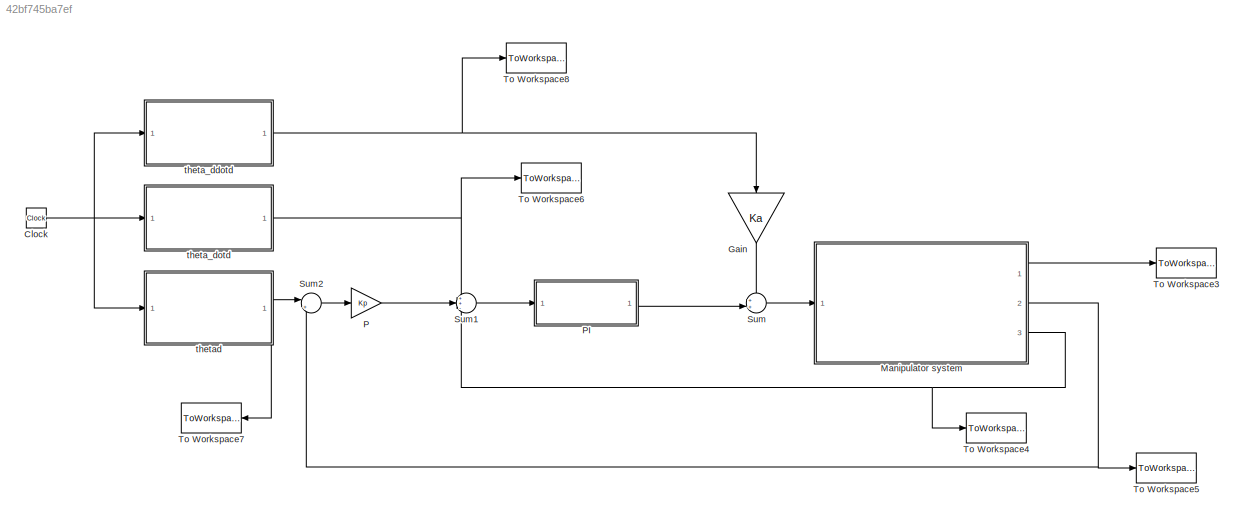
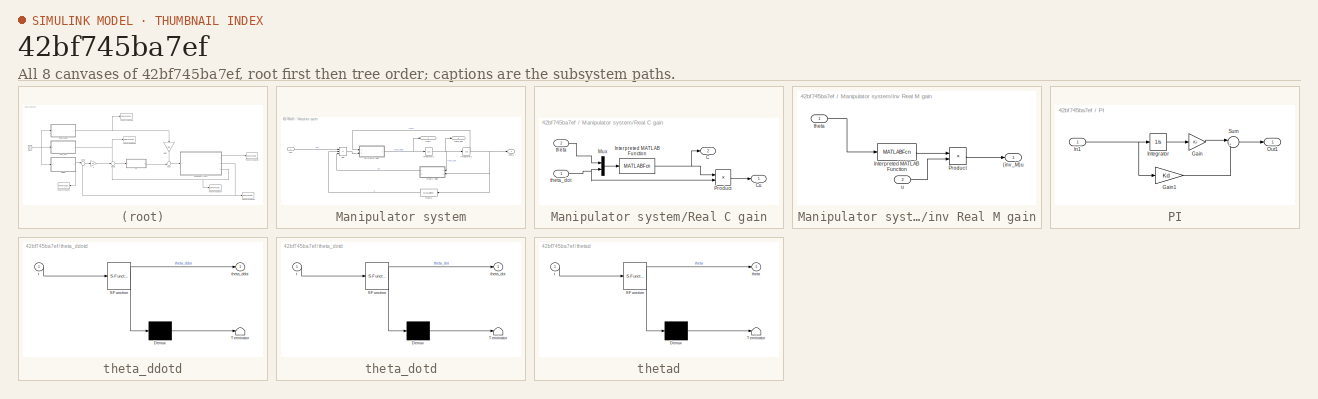
[diagram: thumbnail index - all 8 canvases of the model, root first then tree order]
MODEL slx_42bf745ba7ef
KIND model
CONFIG AbsTol = auto
CONFIG EnableMultiTasking = off
CONFIG FixedStep = 0.01
CONFIG MaxStep = auto
CONFIG MinStep = auto
CONFIG RelTol = 1e-3
CONFIG SampleTimeConstraint = Unconstrained
CONFIG SolverName = ode4
CONFIG StartTime = 0.0
CONFIG StopTime = 10.0
BLOCK [Clock] Clock
BLOCK [Gain] Gain
  Gain = Ka
  Multiplication = Matrix(K*u) (u vector)
  NameLocation = left
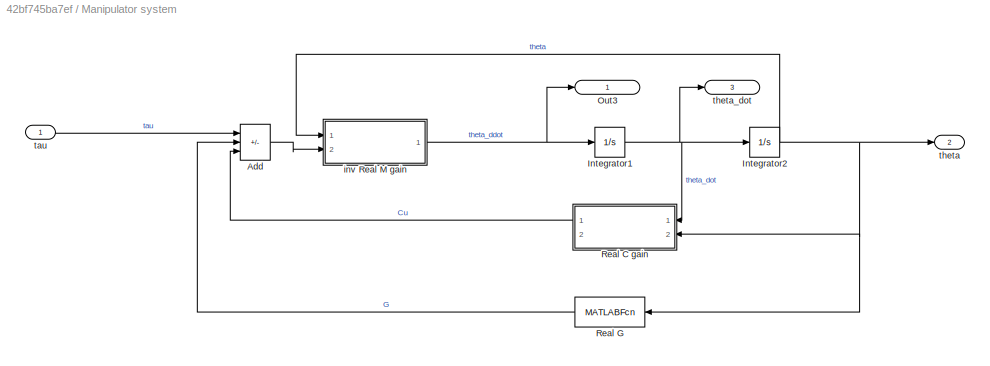
BLOCK [SubSystem] Manipulator system
  Ports = [1, 3]
  RequestExecContextInheritance = off
BLOCK [Sum] Manipulator system/Add
  IconShape = rectangular
  Inputs = +--
  Ports = [3, 1]
BLOCK [Integrator] Manipulator system/Integrator1
  InitialCondition = theta_dot0
  Ports = [1, 1]
BLOCK [Integrator] Manipulator system/Integrator2
  InitialCondition = theta0
  Ports = [1, 1]
BLOCK [Outport] Manipulator system/Out3
  IconDisplay = Signal name
BLOCK [SubSystem] Manipulator system/Real C gain
  Ports = [2, 2]
  RequestExecContextInheritance = off
BLOCK [Outport] Manipulator system/Real C gain/C
  Port = 2
BLOCK [Outport] Manipulator system/Real C gain/Cu
BLOCK [MATLABFcn] Manipulator system/Real C gain/Interpreted MATLAB Function
  MATLABFcn = get_real_C(u(2), u(3), u(4))
  Output1D = off
  Ports = [1, 1]
BLOCK [Mux] Manipulator system/Real C gain/Mux
  DisplayOption = bar
  Inputs = 2
  Ports = [2, 1]
BLOCK [Product] Manipulator system/Real C gain/Product
  Multiplication = Matrix(*)
  Ports = [2, 1]
BLOCK [Inport] Manipulator system/Real C gain/theta
  Port = 2
BLOCK [Inport] Manipulator system/Real C gain/theta_dot
BLOCK [MATLABFcn] Manipulator system/Real G
  MATLABFcn = get_real_G(u(1), u(2))
  Output1D = off
  Ports = [1, 1]
BLOCK [SubSystem] Manipulator system/inv Real M gain
  Ports = [2, 1]
  RequestExecContextInheritance = off
BLOCK [Outport] Manipulator system/inv Real M gain/(inv_M)u
BLOCK [MATLABFcn] Manipulator system/inv Real M gain/Interpreted MATLAB Function
  MATLABFcn = get_inv_real_M(u(2))
  Output1D = off
  Ports = [1, 1]
BLOCK [Product] Manipulator system/inv Real M gain/Product
  Multiplication = Matrix(*)
  Ports = [2, 1]
BLOCK [Inport] Manipulator system/inv Real M gain/theta
BLOCK [Inport] Manipulator system/inv Real M gain/u
  Port = 2
BLOCK [Inport] Manipulator system/tau
  IconDisplay = Signal name
BLOCK [Outport] Manipulator system/theta
  IconDisplay = Signal name
  Port = 2
BLOCK [Outport] Manipulator system/theta_dot
  IconDisplay = Signal name
  Port = 3
BLOCK [Gain] P
  Gain = Kp
  Multiplication = Matrix(K*u) (u vector)
BLOCK [SubSystem] PI
  Ports = [1, 1]
  RequestExecContextInheritance = off
BLOCK [Gain] PI/Gain
  Gain = Ki
  Multiplication = Matrix(K*u) (u vector)
BLOCK [Gain] PI/Gain1
  Gain = Kd
  Multiplication = Matrix(K*u) (u vector)
BLOCK [Inport] PI/In1
BLOCK [Integrator] PI/Integrator
  Ports = [1, 1]
BLOCK [Outport] PI/Out1
BLOCK [Sum] PI/Sum
  Inputs = |++
  Ports = [2, 1]
BLOCK [Sum] Sum
  Inputs = ++|
  Ports = [2, 1]
BLOCK [Sum] Sum1
  Inputs = ++-
  Ports = [3, 1]
BLOCK [Sum] Sum2
  Inputs = |+-
  Ports = [2, 1]
BLOCK [ToWorkspace] To Workspace3
  MaxDataPoints = inf
  Ports = [1]
  SampleTime = -1
  SaveFormat = Timeseries
  VariableName = theta_ddot
BLOCK [ToWorkspace] To Workspace4
  MaxDataPoints = inf
  Ports = [1]
  SampleTime = -1
  SaveFormat = Timeseries
  VariableName = theta_dot
BLOCK [ToWorkspace] To Workspace5
  MaxDataPoints = inf
  Ports = [1]
  SampleTime = -1
  SaveFormat = Timeseries
  VariableName = theta
BLOCK [ToWorkspace] To Workspace6
  MaxDataPoints = inf
  Ports = [1]
  SampleTime = -1
  SaveFormat = Timeseries
  VariableName = theta_dotd
BLOCK [ToWorkspace] To Workspace7
  MaxDataPoints = inf
  Ports = [1]
  SampleTime = -1
  SaveFormat = Timeseries
  VariableName = thetad
BLOCK [ToWorkspace] To Workspace8
  MaxDataPoints = inf
  Ports = [1]
  SampleTime = -1
  SaveFormat = Timeseries
  VariableName = theta_ddotd
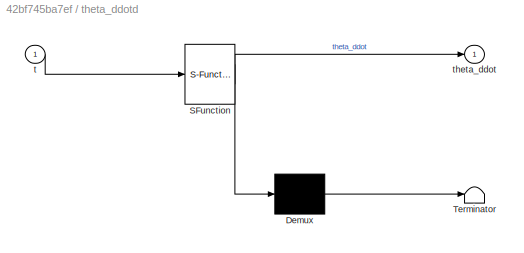
BLOCK [SubSystem] theta_ddotd
  ErrorFcn = Stateflow.Translate.translate
  PermitHierarchicalResolution = ExplicitOnly
  Ports = [1, 1]
  RequestExecContextInheritance = off
  SFBlockType = MATLAB Function
  TreatAsAtomicUnit = on
BLOCK [Demux] theta_ddotd/ Demux 
  Outputs = 1
  Ports = [1, 1]
BLOCK [S-Function] theta_ddotd/ SFunction 
  EnableBusSupport = on
  FunctionName = sf_sfun
  Parameters = omega
  PortCounts = [1 2]
  Ports = [1, 2]
  SFcnIsStateOwnerBlock = off
  SFunctionDeploymentMode = off
  Tag = Stateflow S-Function 3
BLOCK [Terminator] theta_ddotd/ Terminator 
BLOCK [Inport] theta_ddotd/t
BLOCK [Outport] theta_ddotd/theta_ddot
BLOCK [SubSystem] theta_dotd
  ErrorFcn = Stateflow.Translate.translate
  PermitHierarchicalResolution = ExplicitOnly
  Ports = [1, 1]
  RequestExecContextInheritance = off
  SFBlockType = MATLAB Function
  TreatAsAtomicUnit = on
BLOCK [Demux] theta_dotd/ Demux 
  Outputs = 1
  Ports = [1, 1]
BLOCK [S-Function] theta_dotd/ SFunction 
  EnableBusSupport = on
  FunctionName = sf_sfun
  Parameters = omega
  PortCounts = [1 2]
  Ports = [1, 2]
  SFcnIsStateOwnerBlock = off
  SFunctionDeploymentMode = off
  Tag = Stateflow S-Function 1
BLOCK [Terminator] theta_dotd/ Terminator 
BLOCK [Inport] theta_dotd/t
BLOCK [Outport] theta_dotd/theta_dot
BLOCK [SubSystem] thetad
  ErrorFcn = Stateflow.Translate.translate
  PermitHierarchicalResolution = ExplicitOnly
  Ports = [1, 1]
  RequestExecContextInheritance = off
  SFBlockType = MATLAB Function
  TreatAsAtomicUnit = on
BLOCK [Demux] thetad/ Demux 
  Outputs = 1
  Ports = [1, 1]
BLOCK [S-Function] thetad/ SFunction 
  EnableBusSupport = on
  FunctionName = sf_sfun
  Parameters = dc,omega
  PortCounts = [1 2]
  Ports = [1, 2]
  SFcnIsStateOwnerBlock = off
  SFunctionDeploymentMode = off
  Tag = Stateflow S-Function 2
BLOCK [Terminator] thetad/ Terminator 
BLOCK [Inport] thetad/t
BLOCK [Outport] thetad/theta
NET Clock:1 -> theta_ddotd:1, theta_dotd:1, thetad:1
LINE Gain:1 -> Sum:1
LINE Manipulator system/Add:1 -> Manipulator system/inv Real M gain:2
NET Manipulator system/Integrator1:1 -> Manipulator system/Integrator2:1, Manipulator system/Real C gain:1, Manipulator system/theta_dot:1
NET Manipulator system/Integrator2:1 -> Manipulator system/Real C gain:2, Manipulator system/Real G:1, Manipulator system/inv Real M gain:1, Manipulator system/theta:1
NET Manipulator system/Real C gain/Interpreted MATLAB Function:1 -> Manipulator system/Real C gain/C:1, Manipulator system/Real C gain/Product:1
LINE Manipulator system/Real C gain/Mux:1 -> Manipulator system/Real C gain/Interpreted MATLAB Function:1
LINE Manipulator system/Real C gain/Product:1 -> Manipulator system/Real C gain/Cu:1
LINE Manipulator system/Real C gain/theta:1 -> Manipulator system/Real C gain/Mux:1
NET Manipulator system/Real C gain/theta_dot:1 -> Manipulator system/Real C gain/Mux:2, Manipulator system/Real C gain/Product:2
LINE Manipulator system/Real C gain:1 -> Manipulator system/Add:3
LINE Manipulator system/Real G:1 -> Manipulator system/Add:2
LINE Manipulator system/inv Real M gain/Interpreted MATLAB Function:1 -> Manipulator system/inv Real M gain/Product:1
LINE Manipulator system/inv Real M gain/Product:1 -> Manipulator system/inv Real M gain/(inv_M)u:1
LINE Manipulator system/inv Real M gain/theta:1 -> Manipulator system/inv Real M gain/Interpreted MATLAB Function:1
LINE Manipulator system/inv Real M gain/u:1 -> Manipulator system/inv Real M gain/Product:2
NET Manipulator system/inv Real M gain:1 -> Manipulator system/Integrator1:1, Manipulator system/Out3:1
LINE Manipulator system/tau:1 -> Manipulator system/Add:1
LINE Manipulator system:1 -> To Workspace3:1
NET Manipulator system:2 -> Sum2:2, To Workspace5:1
NET Manipulator system:3 -> Sum1:3, To Workspace4:1
LINE P:1 -> Sum1:2
LINE PI/Gain1:1 -> PI/Sum:2
LINE PI/Gain:1 -> PI/Sum:1
NET PI/In1:1 -> PI/Gain1:1, PI/Integrator:1
LINE PI/Integrator:1 -> PI/Gain:1
LINE PI/Sum:1 -> PI/Out1:1
LINE PI:1 -> Sum:2
LINE Sum1:1 -> PI:1
LINE Sum2:1 -> P:1
LINE Sum:1 -> Manipulator system:1
NET theta_ddotd:1 -> Gain:1, To Workspace8:1
NET theta_dotd:1 -> Sum1:1, To Workspace6:1
NET thetad:1 -> Sum2:1, To Workspace7:1
note: NET lines group one-source signal fan-out (src -> all destinations, sorted); 1:1 wires keep LINE
CHART thetad states=1 transitions=1
  STATE_LABEL 'eML_blk_kernel()'
  STATE_LABEL 'SCRIPT:\nfunction theta = trajectory(t, omega, dc)\n    n = length(omega);\n    theta = zeros(n,1);\n    for i=1:n\n        theta(i) = -0.75*cos(omega(i)*t) + dc(i);\n    end\n'
CHART theta_ddotd states=1 transitions=1
  STATE_LABEL 'eML_blk_kernel()'
  STATE_LABEL 'SCRIPT:\nfunction theta_ddot = accel(t, omega)\n    n = length(omega);\n    theta_ddot = zeros(n,1);\n    for i=1:n\n        theta_ddot(i) = 0.75*(omega(i)^2)*cos(omega(i)*t);\n    end'
CHART theta_dotd states=1 transitions=1
  STATE_LABEL 'eML_blk_kernel()'
  STATE_LABEL 'SCRIPT:\nfunction theta_dot = velocity(t, omega)\n    n = length(omega);\n    theta_dot = zeros(n,1);\n    for i=1:n\n        theta_dot(i) = 0.75*omega(i)*sin(omega(i)*t);\n    end\n'
CHART  states=0 transitions=0
CHART  states=0 transitions=0
CHART  states=0 transitions=0
